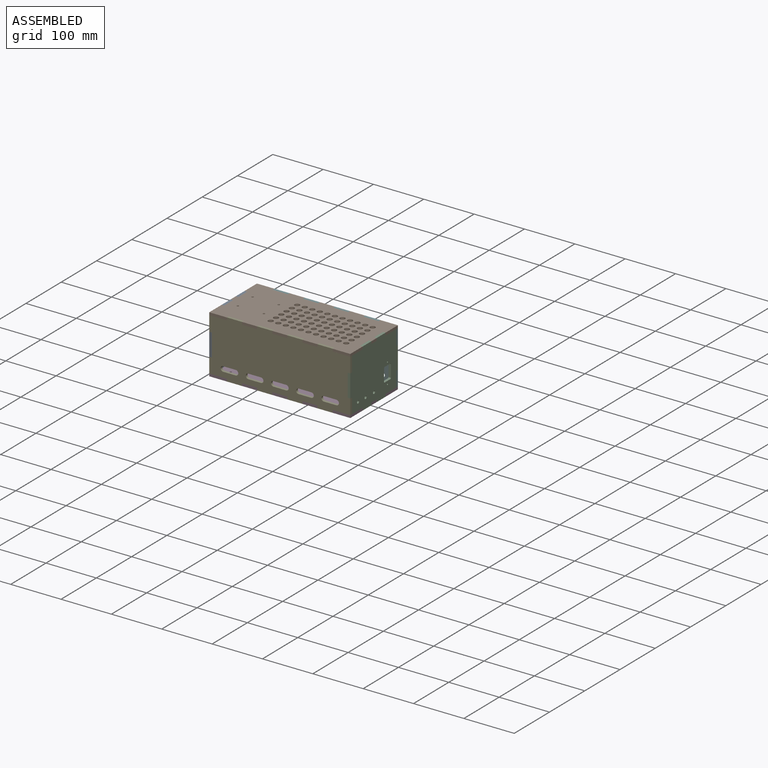
[diagram: assembled view]
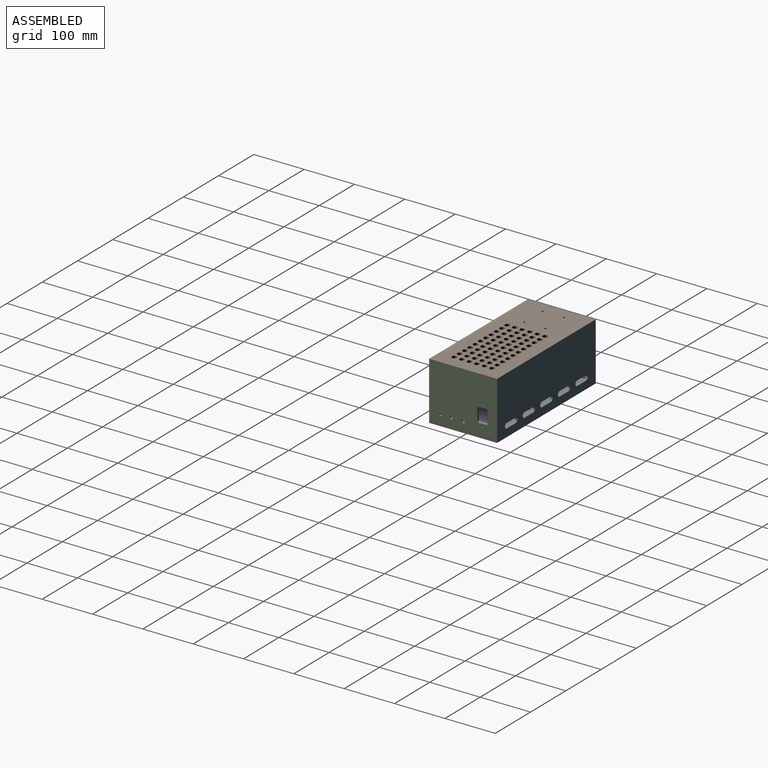
[diagram: assembled view, second angle]
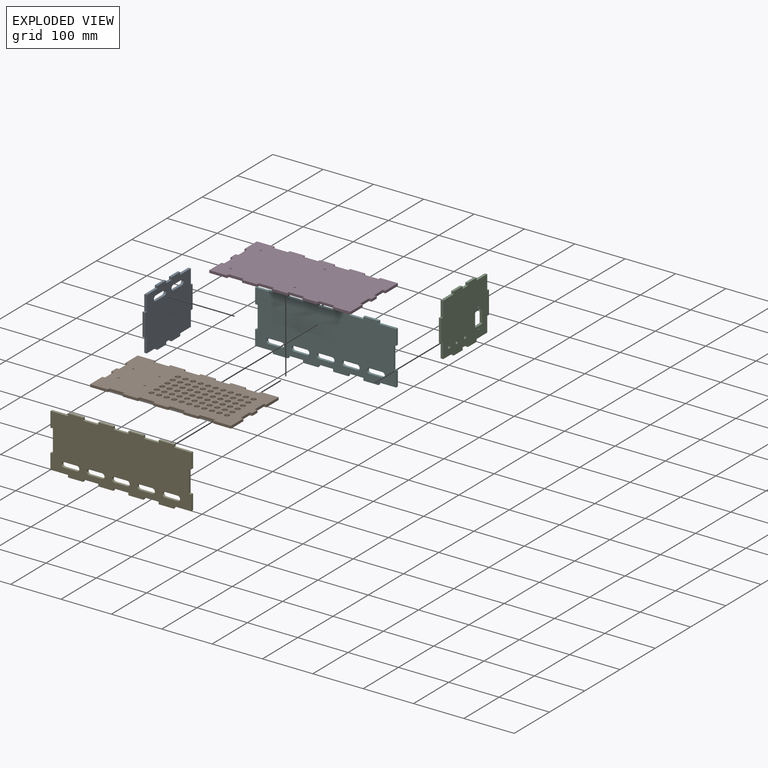
[diagram: exploded view]
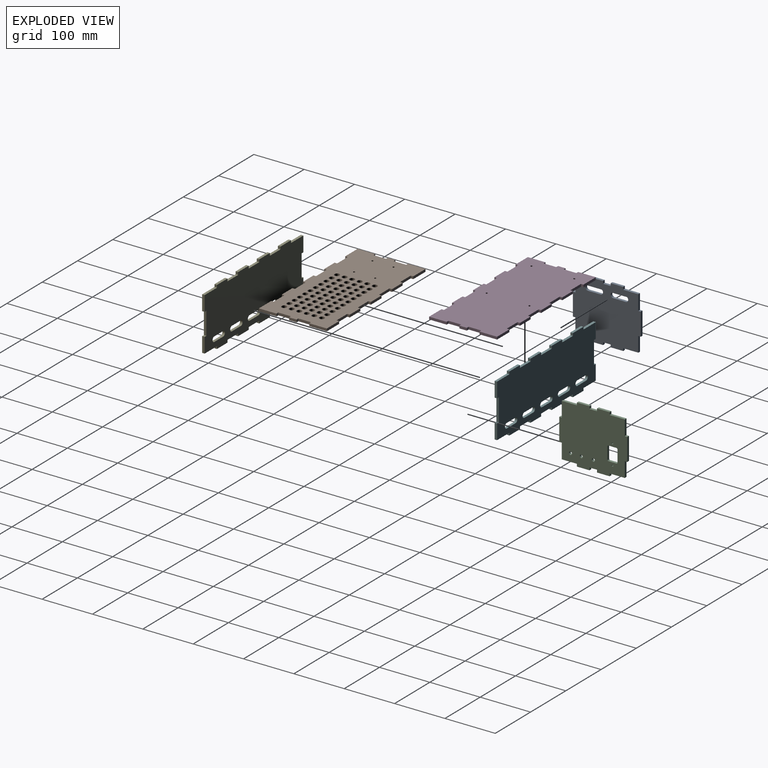
[diagram: exploded view, second angle]
ASSEMBLY  parts=6 mates=5
PART A: 38 faces, bbox 115x135x5 mm
  f0: cylinder r=5mm len=10mm, axis (0,0,-1), area 78.5mm2, adj f1,f35,f36,f37
  f1: plane 25x5mm, normal (1,0,0), area 125mm2, adj f0,f2,f36,f37
  f2: cylinder r=5mm len=10mm, axis (0,0,-1), area 78.5mm2, adj f1,f35,f36,f37
  f3: cylinder r=5mm len=10mm, axis (0,0,-1), area 78.5mm2, adj f4,f33,f36,f37
  f4: plane 25x5mm, normal (-1,0,0), area 125mm2, adj f3,f5,f36,f37
  f5: cylinder r=5mm len=10mm, axis (0,0,-1), area 78.5mm2, adj f4,f33,f36,f37
  f6: plane 30x5mm, normal (0,1,0), area 150mm2, adj f7,f34,f36,f37
  f7: plane 30x5mm, normal (-1,0,0), area 150mm2, adj f6,f8,f36,f37
  f8: plane 5x5mm, normal (0,1,0), area 25mm2, adj f7,f9,f36,f37
  f9: plane 25x5mm, normal (-1,0,0), area 125mm2, adj f8,f10,f36,f37
  f10: plane 5x5mm, normal (0,-1,0), area 25mm2, adj f9,f11,f36,f37
  f11: plane 15x5mm, normal (-1,0,0), area 75mm2, adj f10,f12,f36,f37
  f12: plane 5x5mm, normal (0,1,0), area 25mm2, adj f11,f13,f36,f37
  f13: plane 25x5mm, normal (-1,0,0), area 125mm2, adj f12,f14,f36,f37
  f14: plane 5x5mm, normal (0,-1,0), area 25mm2, adj f13,f15,f36,f37
  f15: plane 30x5mm, normal (-1,0,0), area 150mm2, adj f14,f16,f36,f37
  f16: plane 30x5mm, normal (0,-1,0), area 150mm2, adj f15,f17,f36,f37
  f17: plane 5x5mm, normal (-1,0,0), area 25mm2, adj f16,f18,f36,f37
  f18: plane 45x5mm, normal (0,-1,0), area 225mm2, adj f17,f19,f36,f37
  f19: plane 5x5mm, normal (1,0,0), area 25mm2, adj f18,f20,f36,f37
  f20: plane 30x5mm, normal (0,-1,0), area 150mm2, adj f19,f21,f36,f37
  f21: plane 30x5mm, normal (1,0,0), area 150mm2, adj f20,f22,f36,f37
  f22: plane 5x5mm, normal (0,-1,0), area 25mm2, adj f21,f23,f36,f37
  f23: plane 25x5mm, normal (1,0,0), area 125mm2, adj f22,f24,f36,f37
  f24: plane 5x5mm, normal (0,1,0), area 25mm2, adj f23,f25,f36,f37
  f25: plane 15x5mm, normal (1,0,0), area 75mm2, adj f24,f26,f36,f37
  f26: plane 5x5mm, normal (0,-1,0), area 25mm2, adj f25,f27,f36,f37
  f27: plane 25x5mm, normal (1,0,0), area 125mm2, adj f26,f28,f36,f37
  f28: plane 5x5mm, normal (0,1,0), area 25mm2, adj f27,f29,f36,f37
  f29: plane 30x5mm, normal (1,0,0), area 150mm2, adj f28,f30,f36,f37
  f30: plane 30x5mm, normal (0,1,0), area 150mm2, adj f29,f31,f36,f37
  f31: plane 5x5mm, normal (1,0,0), area 25mm2, adj f30,f32,f36,f37
  f32: plane 45x5mm, normal (0,1,0), area 225mm2, adj f31,f34,f36,f37
  f33: plane 25x5mm, normal (1,0,0), area 125mm2, adj f3,f5,f36,f37
  f34: plane 5x5mm, normal (-1,0,0), area 25mm2, adj f6,f32,f36,f37
  f35: plane 25x5mm, normal (-1,0,0), area 125mm2, adj f0,f2,f36,f37
  f36: plane 135x115mm, normal (0,0,1), area 13417.9mm2, adj f0,f1,f2,f3,f4,f5,f6,f7
  f37: plane 135x115mm, normal (0,0,-1), area 13417.9mm2, adj f0,f1,f2,f3,f4,f5,f6,f7
PART B: 124 faces, bbox 280x135x5 mm
  f0: plane 35x5mm, normal (0,-1,0), area 175mm2, adj f1,f120,f122,f123
  f1: plane 5x5mm, normal (1,0,0), area 25mm2, adj f0,f2,f122,f123
  f2: plane 30x5mm, normal (0,-1,0), area 150mm2, adj f1,f3,f122,f123
  f3: plane 5x5mm, normal (-1,0,0), area 25mm2, adj f2,f4,f122,f123
  f4: plane 30x5mm, normal (0,-1,0), area 150mm2, adj f3,f5,f122,f123
  f5: plane 5x5mm, normal (1,0,0), area 25mm2, adj f4,f6,f122,f123
  f6: plane 30x5mm, normal (0,-1,0), area 150mm2, adj f5,f7,f122,f123
  f7: plane 5x5mm, normal (-1,0,0), area 25mm2, adj f6,f8,f122,f123
  f8: plane 30x5mm, normal (0,-1,0), area 150mm2, adj f7,f9,f122,f123
  f9: plane 5x5mm, normal (1,0,0), area 25mm2, adj f8,f10,f122,f123
  f10: plane 30x5mm, normal (0,-1,0), area 150mm2, adj f9,f11,f122,f123
  f11: plane 5x5mm, normal (-1,0,0), area 25mm2, adj f10,f12,f122,f123
  f12: plane 30x5mm, normal (0,-1,0), area 150mm2, adj f11,f13,f122,f123
  f13: plane 5x5mm, normal (1,0,0), area 25mm2, adj f12,f14,f122,f123
  f14: plane 30x5mm, normal (0,-1,0), area 150mm2, adj f13,f15,f122,f123
  f15: plane 5x5mm, normal (-1,0,0), area 25mm2, adj f14,f16,f122,f123
  f16: plane 35x5mm, normal (0,-1,0), area 175mm2, adj f15,f17,f122,f123
  f17: plane 35x5mm, normal (1,0,0), area 175mm2, adj f16,f18,f122,f123
  f18: plane 5x5mm, normal (0,1,0), area 25mm2, adj f17,f19,f122,f123
  f19: plane 25x5mm, normal (1,0,0), area 125mm2, adj f18,f20,f122,f123
  f20: plane 5x5mm, normal (0,-1,0), area 25mm2, adj f19,f21,f122,f123
  f21: plane 15x5mm, normal (1,0,0), area 75mm2, adj f20,f22,f122,f123
  f22: plane 5x5mm, normal (0,1,0), area 25mm2, adj f21,f23,f122,f123
  f23: plane 25x5mm, normal (1,0,0), area 125mm2, adj f22,f24,f122,f123
  f24: plane 5x5mm, normal (0,-1,0), area 25mm2, adj f23,f25,f122,f123
  f25: plane 35x5mm, normal (1,0,0), area 175mm2, adj f24,f26,f122,f123
  f26: plane 35x5mm, normal (0,1,0), area 175mm2, adj f25,f27,f122,f123
  f27: plane 5x5mm, normal (-1,0,0), area 25mm2, adj f26,f28,f122,f123
  f28: plane 30x5mm, normal (0,1,0), area 150mm2, adj f27,f29,f122,f123
  f29: plane 5x5mm, normal (1,0,0), area 25mm2, adj f28,f30,f122,f123
  f30: plane 30x5mm, normal (0,1,0), area 150mm2, adj f29,f31,f122,f123
  f31: plane 5x5mm, normal (-1,0,0), area 25mm2, adj f30,f32,f122,f123
  f32: plane 30x5mm, normal (0,1,0), area 150mm2, adj f31,f33,f122,f123
  f33: plane 5x5mm, normal (1,0,0), area 25mm2, adj f32,f34,f122,f123
  f34: plane 30x5mm, normal (0,1,0), area 150mm2, adj f33,f35,f122,f123
  f35: plane 5x5mm, normal (-1,0,0), area 25mm2, adj f34,f36,f122,f123
  f36: plane 30x5mm, normal (0,1,0), area 150mm2, adj f35,f37,f122,f123
  f37: plane 5x5mm, normal (1,0,0), area 25mm2, adj f36,f38,f122,f123
  f38: plane 30x5mm, normal (0,1,0), area 150mm2, adj f37,f39,f122,f123
  f39: plane 5x5mm, normal (-1,0,0), area 25mm2, adj f38,f40,f122,f123
  f40: plane 30x5mm, normal (0,1,0), area 150mm2, adj f39,f41,f122,f123
  f41: plane 5x5mm, normal (1,0,0), area 25mm2, adj f40,f42,f122,f123
  f42: plane 35x5mm, normal (0,1,0), area 175mm2, adj f41,f43,f122,f123
  f43: plane 35x5mm, normal (-1,0,0), area 175mm2, adj f42,f44,f122,f123
  f44: plane 5x5mm, normal (0,-1,0), area 25mm2, adj f43,f45,f122,f123
  f45: plane 25x5mm, normal (-1,0,0), area 125mm2, adj f44,f46,f122,f123
  f46: plane 5x5mm, normal (0,1,0), area 25mm2, adj f45,f47,f122,f123
  f47: plane 15x5mm, normal (-1,0,0), area 75mm2, adj f46,f48,f122,f123
  f48: plane 5x5mm, normal (0,-1,0), area 25mm2, adj f47,f49,f122,f123
  f49: plane 25x5mm, normal (-1,0,0), area 125mm2, adj f48,f50,f122,f123
  f50: plane 5x5mm, normal (0,1,0), area 25mm2, adj f49,f120,f122,f123
  f51: cylinder r=5mm len=10mm, axis (0,0,-1), area 157.1mm2, adj f122,f123
  f52: cylinder r=5mm len=10mm, axis (0,0,-1), area 157.1mm2, adj f122,f123
  f53: cylinder r=5mm len=10mm, axis (0,0,-1), area 157.1mm2, adj f122,f123
  f54: cylinder r=5mm len=10mm, axis (0,0,-1), area 157.1mm2, adj f122,f123
  f55: cylinder r=5mm len=10mm, axis (0,0,-1), area 157.1mm2, adj f122,f123
  f56: cylinder r=5mm len=10mm, axis (0,0,-1), area 157.1mm2, adj f122,f123
  f57: cylinder r=5mm len=10mm, axis (0,0,-1), area 157.1mm2, adj f122,f123
  f58: cylinder r=5mm len=10mm, axis (0,0,-1), area 157.1mm2, adj f122,f123
  f59: cylinder r=5mm len=10mm, axis (0,0,-1), area 157.1mm2, adj f122,f123
  f60: cylinder r=5mm len=10mm, axis (0,0,-1), area 157.1mm2, adj f122,f123
  f61: cylinder r=5mm len=10mm, axis (0,0,-1), area 157.1mm2, adj f122,f123
  f62: cylinder r=5mm len=10mm, axis (0,0,-1), area 157.1mm2, adj f122,f123
  f63: cylinder r=5mm len=10mm, axis (0,0,-1), area 157.1mm2, adj f122,f123
  f64: cylinder r=5mm len=10mm, axis (0,0,-1), area 157.1mm2, adj f122,f123
  f65: cylinder r=5mm len=10mm, axis (0,0,-1), area 157.1mm2, adj f122,f123
  f66: cylinder r=5mm len=10mm, axis (0,0,-1), area 157.1mm2, adj f122,f123
  f67: cylinder r=5mm len=10mm, axis (0,0,-1), area 157.1mm2, adj f122,f123
  f68: cylinder r=5mm len=10mm, axis (0,0,-1), area 157.1mm2, adj f122,f123
  f69: cylinder r=5mm len=10mm, axis (0,0,-1), area 157.1mm2, adj f122,f123
  f70: cylinder r=5mm len=10mm, axis (0,0,-1), area 157.1mm2, adj f122,f123
  f71: cylinder r=5mm len=10mm, axis (0,0,-1), area 157.1mm2, adj f122,f123
  f72: cylinder r=5mm len=10mm, axis (0,0,-1), area 157.1mm2, adj f122,f123
  f73: cylinder r=5mm len=10mm, axis (0,0,-1), area 157.1mm2, adj f122,f123
  f74: cylinder r=5mm len=10mm, axis (0,0,-1), area 157.1mm2, adj f122,f123
  f75: cylinder r=5mm len=10mm, axis (0,0,-1), area 157.1mm2, adj f122,f123
  f76: cylinder r=5mm len=10mm, axis (0,0,-1), area 157.1mm2, adj f122,f123
  f77: cylinder r=5mm len=10mm, axis (0,0,-1), area 157.1mm2, adj f122,f123
  f78: cylinder r=2mm len=5mm, axis (0,0,-1), area 62.8mm2, adj f122,f123
  f79: cylinder r=2mm len=5mm, axis (0,0,-1), area 62.8mm2, adj f122,f123
  f80: cylinder r=2mm len=5mm, axis (0,0,-1), area 62.8mm2, adj f122,f123
  f81: cylinder r=5mm len=10mm, axis (0,0,-1), area 157.1mm2, adj f122,f123
  f82: cylinder r=5mm len=10mm, axis (0,0,-1), area 157.1mm2, adj f122,f123
  f83: cylinder r=5mm len=10mm, axis (0,0,-1), area 157.1mm2, adj f122,f123
  f84: cylinder r=5mm len=10mm, axis (0,0,-1), area 157.1mm2, adj f122,f123
  f85: cylinder r=5mm len=10mm, axis (0,0,-1), area 157.1mm2, adj f122,f123
  f86: cylinder r=5mm len=10mm, axis (0,0,-1), area 157.1mm2, adj f122,f123
  f87: cylinder r=5mm len=10mm, axis (0,0,-1), area 157.1mm2, adj f122,f123
  f88: cylinder r=5mm len=10mm, axis (0,0,-1), area 157.1mm2, adj f122,f123
  f89: cylinder r=5mm len=10mm, axis (0,0,-1), area 157.1mm2, adj f122,f123
  f90: cylinder r=5mm len=10mm, axis (0,0,-1), area 157.1mm2, adj f122,f123
  f91: cylinder r=5mm len=10mm, axis (0,0,-1), area 157.1mm2, adj f122,f123
  f92: cylinder r=5mm len=10mm, axis (0,0,-1), area 157.1mm2, adj f122,f123
  f93: cylinder r=5mm len=10mm, axis (0,0,-1), area 157.1mm2, adj f122,f123
  f94: cylinder r=5mm len=10mm, axis (0,0,-1), area 157.1mm2, adj f122,f123
  f95: cylinder r=5mm len=10mm, axis (0,0,-1), area 157.1mm2, adj f122,f123
  f96: cylinder r=5mm len=10mm, axis (0,0,-1), area 157.1mm2, adj f122,f123
  f97: cylinder r=5mm len=10mm, axis (0,0,-1), area 157.1mm2, adj f122,f123
  f98: cylinder r=5mm len=10mm, axis (0,0,-1), area 157.1mm2, adj f122,f123
  f99: cylinder r=5mm len=10mm, axis (0,0,-1), area 157.1mm2, adj f122,f123
  f100: cylinder r=5mm len=10mm, axis (0,0,-1), area 157.1mm2, adj f122,f123
  f101: cylinder r=5mm len=10mm, axis (0,0,-1), area 157.1mm2, adj f122,f123
  f102: cylinder r=5mm len=10mm, axis (0,0,-1), area 157.1mm2, adj f122,f123
  f103: cylinder r=5mm len=10mm, axis (0,0,-1), area 157.1mm2, adj f122,f123
  f104: cylinder r=5mm len=10mm, axis (0,0,-1), area 157.1mm2, adj f122,f123
  f105: cylinder r=5mm len=10mm, axis (0,0,-1), area 157.1mm2, adj f122,f123
  f106: cylinder r=5mm len=10mm, axis (0,0,-1), area 157.1mm2, adj f122,f123
  f107: cylinder r=5mm len=10mm, axis (0,0,-1), area 157.1mm2, adj f122,f123
  f108: cylinder r=5mm len=10mm, axis (0,0,-1), area 157.1mm2, adj f122,f123
  f109: cylinder r=5mm len=10mm, axis (0,0,-1), area 157.1mm2, adj f122,f123
  f110: cylinder r=5mm len=10mm, axis (0,0,-1), area 157.1mm2, adj f122,f123
  f111: cylinder r=5mm len=10mm, axis (0,0,-1), area 157.1mm2, adj f122,f123
  f112: cylinder r=5mm len=10mm, axis (0,0,-1), area 157.1mm2, adj f122,f123
  f113: cylinder r=5mm len=10mm, axis (0,0,-1), area 157.1mm2, adj f122,f123
  f114: cylinder r=5mm len=10mm, axis (0,0,-1), area 157.1mm2, adj f122,f123
  f115: cylinder r=5mm len=10mm, axis (0,0,-1), area 157.1mm2, adj f122,f123
  f116: cylinder r=5mm len=10mm, axis (0,0,-1), area 157.1mm2, adj f122,f123
  f117: cylinder r=5mm len=10mm, axis (0,0,-1), area 157.1mm2, adj f122,f123
  f118: cylinder r=5mm len=10mm, axis (0,0,-1), area 157.1mm2, adj f122,f123
  f119: cylinder r=2mm len=5mm, axis (0,0,-1), area 62.8mm2, adj f122,f123
  f120: plane 35x5mm, normal (-1,0,0), area 175mm2, adj f0,f50,f122,f123
  f121: cylinder r=5mm len=10mm, axis (0,0,-1), area 157.1mm2, adj f122,f123
  f122: plane 280x135mm, normal (0,0,1), area 30866.1mm2, adj f0,f1,f2,f3,f4,f5,f6,f7
  f123: plane 280x135mm, normal (0,0,-1), area 30866.1mm2, adj f0,f1,f2,f3,f4,f5,f6,f7
PART C: 43 faces, bbox 115x135x5 mm
  f0: cylinder r=2mm len=5mm, axis (0,0,-1), area 15.7mm2, adj f1,f38,f41,f42
  f1: plane 24x5mm, normal (0,1,0), area 120mm2, adj f0,f2,f41,f42
  f2: cylinder r=2mm len=5mm, axis (0,0,-1), area 15.7mm2, adj f1,f3,f41,f42
  f3: plane 16x5mm, normal (1,0,0), area 80mm2, adj f2,f4,f41,f42
  f4: cylinder r=2mm len=5mm, axis (0,0,-1), area 15.7mm2, adj f3,f5,f41,f42
  f5: plane 24x5mm, normal (0,-1,0), area 120mm2, adj f4,f6,f41,f42
  f6: cylinder r=2mm len=5mm, axis (0,0,-1), area 15.7mm2, adj f5,f38,f41,f42
  f7: plane 30x5mm, normal (0,1,0), area 150mm2, adj f8,f39,f41,f42
  f8: plane 30x5mm, normal (-1,0,0), area 150mm2, adj f7,f9,f41,f42
  f9: plane 5x5mm, normal (0,1,0), area 25mm2, adj f8,f10,f41,f42
  f10: plane 25x5mm, normal (-1,0,0), area 125mm2, adj f9,f11,f41,f42
  f11: plane 5x5mm, normal (0,-1,0), area 25mm2, adj f10,f12,f41,f42
  f12: plane 15x5mm, normal (-1,0,0), area 75mm2, adj f11,f13,f41,f42
  f13: plane 5x5mm, normal (0,1,0), area 25mm2, adj f12,f14,f41,f42
  f14: plane 25x5mm, normal (-1,0,0), area 125mm2, adj f13,f15,f41,f42
  f15: plane 5x5mm, normal (0,-1,0), area 25mm2, adj f14,f16,f41,f42
  f16: plane 30x5mm, normal (-1,0,0), area 150mm2, adj f15,f17,f41,f42
  f17: plane 30x5mm, normal (0,-1,0), area 150mm2, adj f16,f18,f41,f42
  f18: plane 5x5mm, normal (-1,0,0), area 25mm2, adj f17,f19,f41,f42
  f19: plane 45x5mm, normal (0,-1,0), area 225mm2, adj f18,f20,f41,f42
  f20: plane 5x5mm, normal (1,0,0), area 25mm2, adj f19,f21,f41,f42
  f21: plane 30x5mm, normal (0,-1,0), area 150mm2, adj f20,f22,f41,f42
  f22: plane 30x5mm, normal (1,0,0), area 150mm2, adj f21,f23,f41,f42
  f23: plane 5x5mm, normal (0,-1,0), area 25mm2, adj f22,f24,f41,f42
  f24: plane 25x5mm, normal (1,0,0), area 125mm2, adj f23,f25,f41,f42
  f25: plane 5x5mm, normal (0,1,0), area 25mm2, adj f24,f26,f41,f42
  f26: plane 15x5mm, normal (1,0,0), area 75mm2, adj f25,f27,f41,f42
  f27: plane 5x5mm, normal (0,-1,0), area 25mm2, adj f26,f28,f41,f42
  f28: plane 25x5mm, normal (1,0,0), area 125mm2, adj f27,f29,f41,f42
  f29: plane 5x5mm, normal (0,1,0), area 25mm2, adj f28,f30,f41,f42
  f30: plane 30x5mm, normal (1,0,0), area 150mm2, adj f29,f31,f41,f42
  f31: plane 30x5mm, normal (0,1,0), area 150mm2, adj f30,f32,f41,f42
  f32: plane 5x5mm, normal (1,0,0), area 25mm2, adj f31,f33,f41,f42
  f33: plane 45x5mm, normal (0,1,0), area 225mm2, adj f32,f39,f41,f42
  f34: cylinder r=3mm len=6mm, axis (0,0,-1), area 94.2mm2, adj f41,f42
  f35: cylinder r=3mm len=6mm, axis (0,0,-1), area 94.2mm2, adj f41,f42
  f36: cylinder r=3mm len=6mm, axis (0,0,-1), area 94.2mm2, adj f41,f42
  f37: cylinder r=1.5mm len=5mm, axis (0,0,-1), area 47.1mm2, adj f41,f42
  f38: plane 16x5mm, normal (-1,0,0), area 80mm2, adj f0,f6,f41,f42
  f39: plane 5x5mm, normal (-1,0,0), area 25mm2, adj f7,f33,f41,f42
  f40: cylinder r=1.5mm len=5mm, axis (0,0,-1), area 47.1mm2, adj f41,f42
  f41: plane 135x115mm, normal (0,0,1), area 13419.5mm2, adj f0,f1,f2,f3,f4,f5,f6,f7
  f42: plane 135x115mm, normal (0,0,-1), area 13419.5mm2, adj f0,f1,f2,f3,f4,f5,f6,f7
PART D: 58 faces, bbox 280x135x5 mm
  f0: plane 5x5mm, normal (-1,0,0), area 25mm2, adj f1,f55,f56,f57
  f1: plane 35x5mm, normal (0,-1,0), area 175mm2, adj f0,f2,f56,f57
  f2: plane 35x5mm, normal (1,0,0), area 175mm2, adj f1,f3,f56,f57
  f3: plane 5x5mm, normal (0,1,0), area 25mm2, adj f2,f4,f56,f57
  f4: plane 25x5mm, normal (1,0,0), area 125mm2, adj f3,f5,f56,f57
  f5: plane 5x5mm, normal (0,-1,0), area 25mm2, adj f4,f6,f56,f57
  f6: plane 15x5mm, normal (1,0,0), area 75mm2, adj f5,f7,f56,f57
  f7: plane 5x5mm, normal (0,1,0), area 25mm2, adj f6,f8,f56,f57
  f8: plane 25x5mm, normal (1,0,0), area 125mm2, adj f7,f9,f56,f57
  f9: plane 5x5mm, normal (0,-1,0), area 25mm2, adj f8,f10,f56,f57
  f10: plane 35x5mm, normal (1,0,0), area 175mm2, adj f9,f11,f56,f57
  f11: plane 35x5mm, normal (0,1,0), area 175mm2, adj f10,f12,f56,f57
  f12: plane 5x5mm, normal (-1,0,0), area 25mm2, adj f11,f13,f56,f57
  f13: plane 30x5mm, normal (0,1,0), area 150mm2, adj f12,f14,f56,f57
  f14: plane 5x5mm, normal (1,0,0), area 25mm2, adj f13,f15,f56,f57
  f15: plane 30x5mm, normal (0,1,0), area 150mm2, adj f14,f16,f56,f57
  f16: plane 5x5mm, normal (-1,0,0), area 25mm2, adj f15,f17,f56,f57
  f17: plane 30x5mm, normal (0,1,0), area 150mm2, adj f16,f18,f56,f57
  f18: plane 5x5mm, normal (1,0,0), area 25mm2, adj f17,f19,f56,f57
  f19: plane 30x5mm, normal (0,1,0), area 150mm2, adj f18,f20,f56,f57
  f20: plane 5x5mm, normal (-1,0,0), area 25mm2, adj f19,f21,f56,f57
  f21: plane 30x5mm, normal (0,1,0), area 150mm2, adj f20,f22,f56,f57
  f22: plane 5x5mm, normal (1,0,0), area 25mm2, adj f21,f23,f56,f57
  f23: plane 30x5mm, normal (0,1,0), area 150mm2, adj f22,f24,f56,f57
  f24: plane 5x5mm, normal (-1,0,0), area 25mm2, adj f23,f25,f56,f57
  f25: plane 30x5mm, normal (0,1,0), area 150mm2, adj f24,f26,f56,f57
  f26: plane 5x5mm, normal (1,0,0), area 25mm2, adj f25,f27,f56,f57
  f27: plane 35x5mm, normal (0,1,0), area 175mm2, adj f26,f28,f56,f57
  f28: plane 35x5mm, normal (-1,0,0), area 175mm2, adj f27,f29,f56,f57
  f29: plane 5x5mm, normal (0,-1,0), area 25mm2, adj f28,f30,f56,f57
  f30: plane 25x5mm, normal (-1,0,0), area 125mm2, adj f29,f31,f56,f57
  f31: plane 5x5mm, normal (0,1,0), area 25mm2, adj f30,f32,f56,f57
  f32: plane 15x5mm, normal (-1,0,0), area 75mm2, adj f31,f33,f56,f57
  f33: plane 5x5mm, normal (0,-1,0), area 25mm2, adj f32,f34,f56,f57
  f34: plane 25x5mm, normal (-1,0,0), area 125mm2, adj f33,f35,f56,f57
  f35: plane 5x5mm, normal (0,1,0), area 25mm2, adj f34,f36,f56,f57
  f36: plane 35x5mm, normal (-1,0,0), area 175mm2, adj f35,f37,f56,f57
  f37: plane 35x5mm, normal (0,-1,0), area 175mm2, adj f36,f38,f56,f57
  f38: plane 5x5mm, normal (1,0,0), area 25mm2, adj f37,f39,f56,f57
  f39: plane 30x5mm, normal (0,-1,0), area 150mm2, adj f38,f40,f56,f57
  f40: plane 5x5mm, normal (-1,0,0), area 25mm2, adj f39,f41,f56,f57
  f41: plane 30x5mm, normal (0,-1,0), area 150mm2, adj f40,f42,f56,f57
  f42: plane 5x5mm, normal (1,0,0), area 25mm2, adj f41,f43,f56,f57
  f43: plane 30x5mm, normal (0,-1,0), area 150mm2, adj f42,f44,f56,f57
  f44: plane 5x5mm, normal (-1,0,0), area 25mm2, adj f43,f45,f56,f57
  f45: plane 30x5mm, normal (0,-1,0), area 150mm2, adj f44,f46,f56,f57
  f46: plane 5x5mm, normal (1,0,0), area 25mm2, adj f45,f47,f56,f57
  f47: plane 30x5mm, normal (0,-1,0), area 150mm2, adj f46,f48,f56,f57
  f48: plane 5x5mm, normal (-1,0,0), area 25mm2, adj f47,f49,f56,f57
  f49: plane 30x5mm, normal (0,-1,0), area 150mm2, adj f48,f50,f56,f57
  f50: plane 5x5mm, normal (1,0,0), area 25mm2, adj f49,f55,f56,f57
  f51: cylinder r=2mm len=5mm, axis (0,0,-1), area 62.8mm2, adj f56,f57
  f52: cylinder r=2mm len=5mm, axis (0,0,-1), area 62.8mm2, adj f56,f57
  f53: cylinder r=2mm len=5mm, axis (0,0,-1), area 62.8mm2, adj f56,f57
  f54: cylinder r=2mm len=5mm, axis (0,0,-1), area 62.8mm2, adj f56,f57
  f55: plane 30x5mm, normal (0,-1,0), area 150mm2, adj f0,f50,f56,f57
  f56: plane 280x135mm, normal (0,0,1), area 36049.7mm2, adj f0,f1,f2,f3,f4,f5,f6,f7
  f57: plane 280x135mm, normal (0,0,-1), area 36049.7mm2, adj f0,f1,f2,f3,f4,f5,f6,f7
PART E: 66 faces, bbox 280x115x5 mm
  f0: plane 25x5mm, normal (0,1,0), area 125mm2, adj f1,f63,f64,f65
  f1: cylinder r=5mm len=10mm, axis (0,0,-1), area 78.5mm2, adj f0,f2,f64,f65
  f2: plane 25x5mm, normal (0,-1,0), area 125mm2, adj f1,f63,f64,f65
  f3: plane 25x5mm, normal (0,1,0), area 125mm2, adj f4,f58,f64,f65
  f4: cylinder r=5mm len=10mm, axis (0,0,-1), area 78.5mm2, adj f3,f5,f64,f65
  f5: plane 25x5mm, normal (0,-1,0), area 125mm2, adj f4,f58,f64,f65
  f6: plane 25x5mm, normal (0,-1,0), area 125mm2, adj f7,f59,f64,f65
  f7: cylinder r=5mm len=10mm, axis (0,0,-1), area 78.5mm2, adj f6,f8,f64,f65
  f8: plane 25x5mm, normal (0,1,0), area 125mm2, adj f7,f59,f64,f65
  f9: cylinder r=5mm len=10mm, axis (0,0,-1), area 78.5mm2, adj f10,f60,f64,f65
  f10: plane 25x5mm, normal (0,1,0), area 125mm2, adj f9,f11,f64,f65
  f11: cylinder r=5mm len=10mm, axis (0,0,-1), area 78.5mm2, adj f10,f60,f64,f65
  f12: plane 25x5mm, normal (0,-1,0), area 125mm2, adj f13,f61,f64,f65
  f13: cylinder r=5mm len=10mm, axis (0,0,-1), area 78.5mm2, adj f12,f14,f64,f65
  f14: plane 25x5mm, normal (0,1,0), area 125mm2, adj f13,f61,f64,f65
  f15: plane 35x5mm, normal (0,1,0), area 175mm2, adj f16,f62,f64,f65
  f16: plane 5x5mm, normal (1,0,0), area 25mm2, adj f15,f17,f64,f65
  f17: plane 30x5mm, normal (0,1,0), area 150mm2, adj f16,f18,f64,f65
  f18: plane 5x5mm, normal (-1,0,0), area 25mm2, adj f17,f19,f64,f65
  f19: plane 30x5mm, normal (0,1,0), area 150mm2, adj f18,f20,f64,f65
  f20: plane 5x5mm, normal (1,0,0), area 25mm2, adj f19,f21,f64,f65
  f21: plane 30x5mm, normal (0,1,0), area 150mm2, adj f20,f22,f64,f65
  f22: plane 5x5mm, normal (-1,0,0), area 25mm2, adj f21,f23,f64,f65
  f23: plane 30x5mm, normal (0,1,0), area 150mm2, adj f22,f24,f64,f65
  f24: plane 5x5mm, normal (1,0,0), area 25mm2, adj f23,f25,f64,f65
  f25: plane 30x5mm, normal (0,1,0), area 150mm2, adj f24,f26,f64,f65
  f26: plane 5x5mm, normal (-1,0,0), area 25mm2, adj f25,f27,f64,f65
  f27: plane 30x5mm, normal (0,1,0), area 150mm2, adj f26,f28,f64,f65
  f28: plane 5x5mm, normal (1,0,0), area 25mm2, adj f27,f29,f64,f65
  f29: plane 30x5mm, normal (0,1,0), area 150mm2, adj f28,f30,f64,f65
  f30: plane 5x5mm, normal (-1,0,0), area 25mm2, adj f29,f31,f64,f65
  f31: plane 35x5mm, normal (0,1,0), area 175mm2, adj f30,f32,f64,f65
  f32: plane 30x5mm, normal (-1,0,0), area 150mm2, adj f31,f33,f64,f65
  f33: plane 5x5mm, normal (0,-1,0), area 25mm2, adj f32,f34,f64,f65
  f34: plane 45x5mm, normal (-1,0,0), area 225mm2, adj f33,f35,f64,f65
  f35: plane 5x5mm, normal (0,1,0), area 25mm2, adj f34,f36,f64,f65
  f36: plane 30x5mm, normal (-1,0,0), area 150mm2, adj f35,f37,f64,f65
  f37: plane 35x5mm, normal (0,-1,0), area 175mm2, adj f36,f38,f64,f65
  f38: plane 5x5mm, normal (-1,0,0), area 25mm2, adj f37,f39,f64,f65
  f39: plane 30x5mm, normal (0,-1,0), area 150mm2, adj f38,f40,f64,f65
  f40: plane 5x5mm, normal (1,0,0), area 25mm2, adj f39,f41,f64,f65
  f41: plane 30x5mm, normal (0,-1,0), area 150mm2, adj f40,f42,f64,f65
  f42: plane 5x5mm, normal (-1,0,0), area 25mm2, adj f41,f43,f64,f65
  f43: plane 30x5mm, normal (0,-1,0), area 150mm2, adj f42,f44,f64,f65
  f44: plane 5x5mm, normal (1,0,0), area 25mm2, adj f43,f45,f64,f65
  f45: plane 30x5mm, normal (0,-1,0), area 150mm2, adj f44,f46,f64,f65
  f46: plane 5x5mm, normal (-1,0,0), area 25mm2, adj f45,f47,f64,f65
  f47: plane 30x5mm, normal (0,-1,0), area 150mm2, adj f46,f48,f64,f65
  f48: plane 5x5mm, normal (1,0,0), area 25mm2, adj f47,f49,f64,f65
  f49: plane 30x5mm, normal (0,-1,0), area 150mm2, adj f48,f50,f64,f65
  f50: plane 5x5mm, normal (-1,0,0), area 25mm2, adj f49,f51,f64,f65
  f51: plane 30x5mm, normal (0,-1,0), area 150mm2, adj f50,f52,f64,f65
  f52: plane 5x5mm, normal (1,0,0), area 25mm2, adj f51,f53,f64,f65
  f53: plane 35x5mm, normal (0,-1,0), area 175mm2, adj f52,f54,f64,f65
  f54: plane 30x5mm, normal (1,0,0), area 150mm2, adj f53,f55,f64,f65
  f55: plane 5x5mm, normal (0,1,0), area 25mm2, adj f54,f56,f64,f65
  f56: plane 45x5mm, normal (1,0,0), area 225mm2, adj f55,f57,f64,f65
  f57: plane 5x5mm, normal (0,-1,0), area 25mm2, adj f56,f62,f64,f65
  f58: cylinder r=5mm len=10mm, axis (0,0,-1), area 78.5mm2, adj f3,f5,f64,f65
  f59: cylinder r=5mm len=10mm, axis (0,0,-1), area 78.5mm2, adj f6,f8,f64,f65
  f60: plane 25x5mm, normal (0,-1,0), area 125mm2, adj f9,f11,f64,f65
  f61: cylinder r=5mm len=10mm, axis (0,0,-1), area 78.5mm2, adj f12,f14,f64,f65
  f62: plane 30x5mm, normal (1,0,0), area 150mm2, adj f15,f57,f64,f65
  f63: cylinder r=5mm len=10mm, axis (0,0,-1), area 78.5mm2, adj f0,f2,f64,f65
  f64: plane 280x115mm, normal (0,0,1), area 28507.3mm2, adj f0,f1,f2,f3,f4,f5,f6,f7
  f65: plane 280x115mm, normal (0,0,-1), area 28507.3mm2, adj f0,f1,f2,f3,f4,f5,f6,f7
PART F: 66 faces, bbox 280x115x5 mm
  f0: plane 35x5mm, normal (0,-1,0), area 175mm2, adj f1,f63,f64,f65
  f1: plane 30x5mm, normal (1,0,0), area 150mm2, adj f0,f2,f64,f65
  f2: plane 5x5mm, normal (0,1,0), area 25mm2, adj f1,f3,f64,f65
  f3: plane 45x5mm, normal (1,0,0), area 225mm2, adj f2,f4,f64,f65
  f4: plane 5x5mm, normal (0,-1,0), area 25mm2, adj f3,f5,f64,f65
  f5: plane 30x5mm, normal (1,0,0), area 150mm2, adj f4,f6,f64,f65
  f6: plane 35x5mm, normal (0,1,0), area 175mm2, adj f5,f7,f64,f65
  f7: plane 5x5mm, normal (1,0,0), area 25mm2, adj f6,f8,f64,f65
  f8: plane 30x5mm, normal (0,1,0), area 150mm2, adj f7,f9,f64,f65
  f9: plane 5x5mm, normal (-1,0,0), area 25mm2, adj f8,f10,f64,f65
  f10: plane 30x5mm, normal (0,1,0), area 150mm2, adj f9,f11,f64,f65
  f11: plane 5x5mm, normal (1,0,0), area 25mm2, adj f10,f12,f64,f65
  f12: plane 30x5mm, normal (0,1,0), area 150mm2, adj f11,f13,f64,f65
  f13: plane 5x5mm, normal (-1,0,0), area 25mm2, adj f12,f14,f64,f65
  f14: plane 30x5mm, normal (0,1,0), area 150mm2, adj f13,f15,f64,f65
  f15: plane 5x5mm, normal (1,0,0), area 25mm2, adj f14,f16,f64,f65
  f16: plane 30x5mm, normal (0,1,0), area 150mm2, adj f15,f17,f64,f65
  f17: plane 5x5mm, normal (-1,0,0), area 25mm2, adj f16,f18,f64,f65
  f18: plane 30x5mm, normal (0,1,0), area 150mm2, adj f17,f19,f64,f65
  f19: plane 5x5mm, normal (1,0,0), area 25mm2, adj f18,f20,f64,f65
  f20: plane 30x5mm, normal (0,1,0), area 150mm2, adj f19,f21,f64,f65
  f21: plane 5x5mm, normal (-1,0,0), area 25mm2, adj f20,f22,f64,f65
  f22: plane 35x5mm, normal (0,1,0), area 175mm2, adj f21,f23,f64,f65
  f23: plane 30x5mm, normal (-1,0,0), area 150mm2, adj f22,f24,f64,f65
  f24: plane 5x5mm, normal (0,-1,0), area 25mm2, adj f23,f25,f64,f65
  f25: plane 45x5mm, normal (-1,0,0), area 225mm2, adj f24,f26,f64,f65
  f26: plane 5x5mm, normal (0,1,0), area 25mm2, adj f25,f27,f64,f65
  f27: plane 30x5mm, normal (-1,0,0), area 150mm2, adj f26,f28,f64,f65
  f28: plane 35x5mm, normal (0,-1,0), area 175mm2, adj f27,f29,f64,f65
  f29: plane 5x5mm, normal (-1,0,0), area 25mm2, adj f28,f30,f64,f65
  f30: plane 30x5mm, normal (0,-1,0), area 150mm2, adj f29,f31,f64,f65
  f31: plane 5x5mm, normal (1,0,0), area 25mm2, adj f30,f32,f64,f65
  f32: plane 30x5mm, normal (0,-1,0), area 150mm2, adj f31,f33,f64,f65
  f33: plane 5x5mm, normal (-1,0,0), area 25mm2, adj f32,f34,f64,f65
  f34: plane 30x5mm, normal (0,-1,0), area 150mm2, adj f33,f35,f64,f65
  f35: plane 5x5mm, normal (1,0,0), area 25mm2, adj f34,f36,f64,f65
  f36: plane 30x5mm, normal (0,-1,0), area 150mm2, adj f35,f37,f64,f65
  f37: plane 5x5mm, normal (-1,0,0), area 25mm2, adj f36,f38,f64,f65
  f38: plane 30x5mm, normal (0,-1,0), area 150mm2, adj f37,f39,f64,f65
  f39: plane 5x5mm, normal (1,0,0), area 25mm2, adj f38,f40,f64,f65
  f40: plane 30x5mm, normal (0,-1,0), area 150mm2, adj f39,f41,f64,f65
  f41: plane 5x5mm, normal (-1,0,0), area 25mm2, adj f40,f42,f64,f65
  f42: plane 30x5mm, normal (0,-1,0), area 150mm2, adj f41,f63,f64,f65
  f43: cylinder r=5mm len=10mm, axis (0,0,-1), area 78.5mm2, adj f44,f58,f64,f65
  f44: plane 25x5mm, normal (0,1,0), area 125mm2, adj f43,f45,f64,f65
  f45: cylinder r=5mm len=10mm, axis (0,0,-1), area 78.5mm2, adj f44,f58,f64,f65
  f46: cylinder r=5mm len=10mm, axis (0,0,-1), area 78.5mm2, adj f47,f59,f64,f65
  f47: plane 25x5mm, normal (0,1,0), area 125mm2, adj f46,f48,f64,f65
  f48: cylinder r=5mm len=10mm, axis (0,0,-1), area 78.5mm2, adj f47,f59,f64,f65
  f49: cylinder r=5mm len=10mm, axis (0,0,-1), area 78.5mm2, adj f50,f60,f64,f65
  f50: plane 25x5mm, normal (0,1,0), area 125mm2, adj f49,f51,f64,f65
  f51: cylinder r=5mm len=10mm, axis (0,0,-1), area 78.5mm2, adj f50,f60,f64,f65
  f52: cylinder r=5mm len=10mm, axis (0,0,-1), area 78.5mm2, adj f53,f61,f64,f65
  f53: plane 25x5mm, normal (0,1,0), area 125mm2, adj f52,f54,f64,f65
  f54: cylinder r=5mm len=10mm, axis (0,0,-1), area 78.5mm2, adj f53,f61,f64,f65
  f55: cylinder r=5mm len=10mm, axis (0,0,-1), area 78.5mm2, adj f56,f62,f64,f65
  f56: plane 25x5mm, normal (0,-1,0), area 125mm2, adj f55,f57,f64,f65
  f57: cylinder r=5mm len=10mm, axis (0,0,-1), area 78.5mm2, adj f56,f62,f64,f65
  f58: plane 25x5mm, normal (0,-1,0), area 125mm2, adj f43,f45,f64,f65
  f59: plane 25x5mm, normal (0,-1,0), area 125mm2, adj f46,f48,f64,f65
  f60: plane 25x5mm, normal (0,-1,0), area 125mm2, adj f49,f51,f64,f65
  f61: plane 25x5mm, normal (0,-1,0), area 125mm2, adj f52,f54,f64,f65
  f62: plane 25x5mm, normal (0,1,0), area 125mm2, adj f55,f57,f64,f65
  f63: plane 5x5mm, normal (1,0,0), area 25mm2, adj f0,f42,f64,f65
  f64: plane 280x115mm, normal (0,0,1), area 28507.3mm2, adj f0,f1,f2,f3,f4,f5,f6,f7
  f65: plane 280x115mm, normal (0,0,-1), area 28507.3mm2, adj f0,f1,f2,f3,f4,f5,f6,f7
PLACE A rot(axis=(-0.71,0,0.71),180deg) t=(-83.5,240,301.5)mm
PLACE B rot(axis=(1,0,0),180deg) t=(0,240,115)mm
PLACE C rot(axis=(0,-1,0),90deg) t=(191.5,0,-186.5)mm
PLACE D at identity
PLACE E rot(axis=(-1,0,0),90deg) t=(0,-67.5,-62.5)mm
PLACE F rot(axis=(1,0,0),90deg) t=(0,67.5,-62.5)mm
MATE fastened F.f13 <-> B.f9  axis (-1,0,0) through (66.5,65,112.5)mm
MATE fastened C.f13 <-> D.f5  axis (0,-1,0) through (189,-7.5,2.5)mm
MATE fastened A.f10 <-> B.f46  axis (0,-1,0) through (-86,-7.5,112.5)mm
MATE fastened F.f63 <-> D.f12  axis (1,0,0) through (156.5,65,2.5)mm
MATE fastened E.f26 <-> D.f42  axis (1,0,0) through (6.5,-65,2.5)mm
